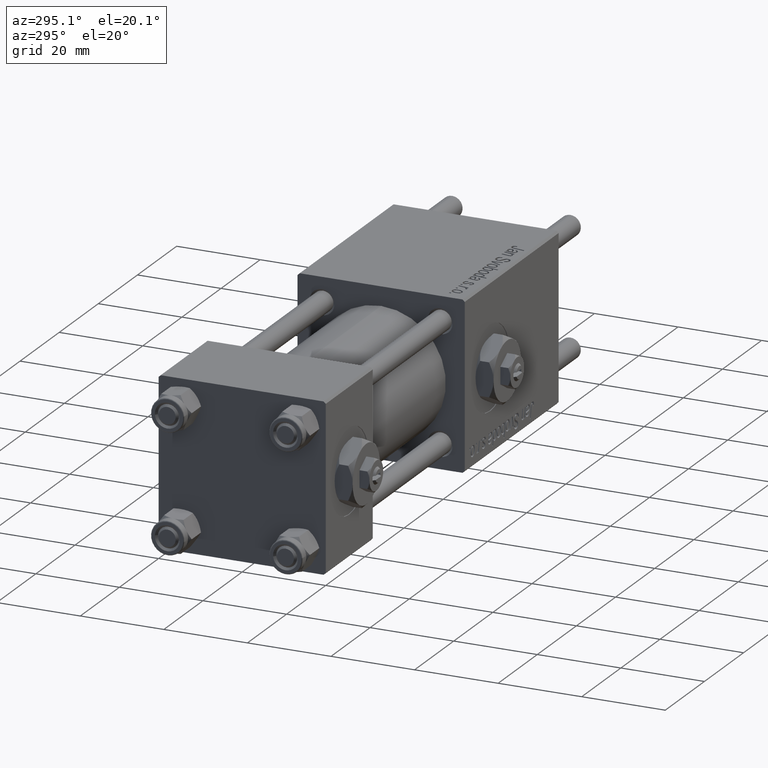
[diagram: clean part render]
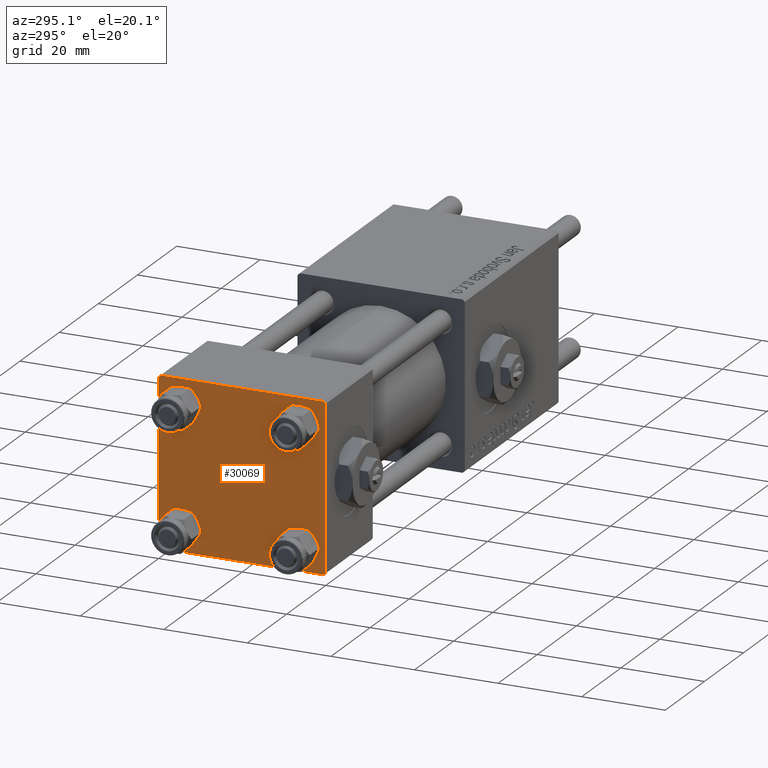
[diagram: same view with one face highlighted and labeled with its STEP entity id]
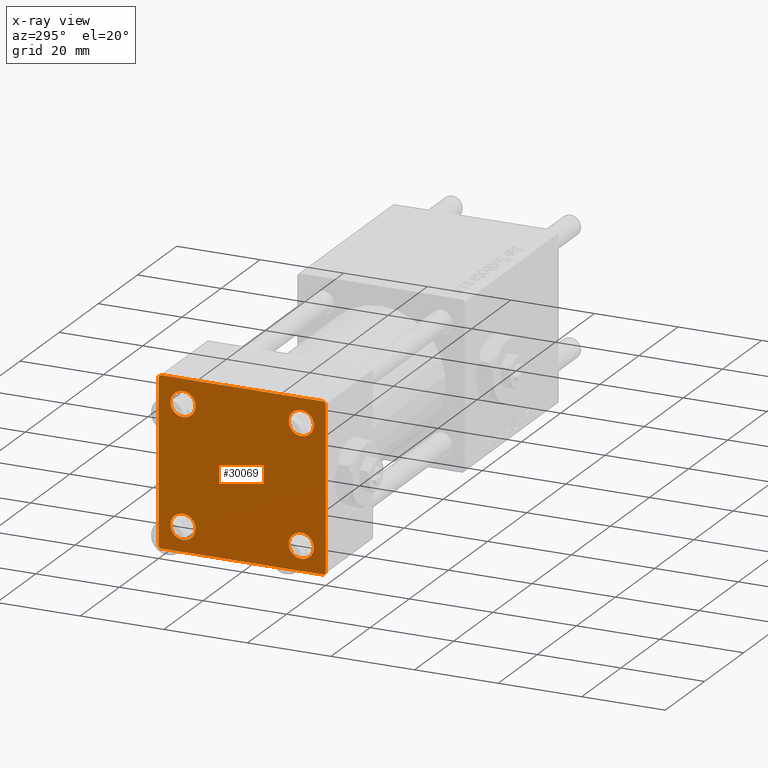
[diagram: x-ray of the same camera — body ghosted, the highlighted face saturated]
A machine part, auxiliary view. The second image highlights one B-rep face of the part: STEP entity #30069.
The next image is the same camera in x-ray: the body ghosted, the highlighted face saturated — about 0% of this face is hidden behind the body in this view.
In plain terms, the highlighted planar face has unit normal (-1, 0, 0).
Its self-contained STEP definition (entity closure, byte-faithful):
#307 = VERTEX_POINT ( 'NONE', #17001 ) ;
#1235 = LINE ( 'NONE', #18492, #41234 ) ;
#1368 = EDGE_CURVE ( 'NONE', #55048, #21621, #33064, .T. ) ;
#1372 = CARTESIAN_POINT ( 'NONE',  ( -0.000000000000000000, 19.75000000000013500, 19.74999999999986144 ) ) ;
#2282 = DIRECTION ( 'NONE',  ( 0.000000000000000000, -0.7071067811865401342, 0.7071067811865549002 ) ) ;
#2341 = DIRECTION ( 'NONE',  ( 0.000000000000000000, 8.673617379884036705E-17, -1.000000000000000000 ) ) ;
#2573 = CARTESIAN_POINT ( 'NONE',  ( 0.000000000000000000, -19.75000000000020961, -19.74999999999979394 ) ) ;
#3221 = ORIENTED_EDGE ( 'NONE', *, *, #1368, .T. ) ;
#3288 = VERTEX_POINT ( 'NONE', #12310 ) ;
#4773 = CARTESIAN_POINT ( 'NONE',  ( 0.000000000000000000, -20.00000000000000355, 19.49999999999998224 ) ) ;
#4894 = DIRECTION ( 'NONE',  ( 0.000000000000000000, 0.000000000000000000, 1.000000000000000000 ) ) ;
#4968 = CARTESIAN_POINT ( 'NONE',  ( 0.000000000000000000, 14.14999999999999858, 11.15000000000001990 ) ) ;
#5051 = DIRECTION ( 'NONE',  ( 0.000000000000000000, 0.000000000000000000, 1.000000000000000000 ) ) ;
#5319 = FACE_BOUND ( 'NONE', #57743, .T. ) ;
#5406 = EDGE_CURVE ( 'NONE', #13984, #37307, #40514, .T. ) ;
#6537 = VERTEX_POINT ( 'NONE', #29812 ) ;
#6815 = EDGE_CURVE ( 'NONE', #55048, #25651, #10976, .T. ) ;
#7297 = VECTOR ( 'NONE', #2341, 1000.000000000000000 ) ;
#7899 = EDGE_LOOP ( 'NONE', ( #49452, #57795, #56521, #33702, #48889, #3221, #45661, #16454 ) ) ;
#7949 = CARTESIAN_POINT ( 'NONE',  ( 0.000000000000000000, -19.49999999999999289, 19.99999999999998934 ) ) ;
#8395 = LINE ( 'NONE', #18815, #44004 ) ;
#8445 = LINE ( 'NONE', #26632, #9678 ) ;
#9432 = EDGE_CURVE ( 'NONE', #55336, #28420, #22693, .T. ) ;
#9652 = DIRECTION ( 'NONE',  ( 1.000000000000000000, 0.000000000000000000, 0.000000000000000000 ) ) ;
#9678 = VECTOR ( 'NONE', #48650, 1000.000000000000000 ) ;
#9910 = CARTESIAN_POINT ( 'NONE',  ( 0.000000000000000000, -14.14999999999999503, 11.15000000000002345 ) ) ;
#10074 = FACE_BOUND ( 'NONE', #48013, .T. ) ;
#10688 = CARTESIAN_POINT ( 'NONE',  ( 0.000000000000000000, -14.14999999999999503, -11.15000000000000036 ) ) ;
#10696 = EDGE_CURVE ( 'NONE', #307, #23887, #43634, .T. ) ;
#10976 = LINE ( 'NONE', #47585, #7297 ) ;
#11027 = CARTESIAN_POINT ( 'NONE',  ( 0.000000000000000000, -14.14999999999999503, 14.15000000000000391 ) ) ;
#11470 = DIRECTION ( 'NONE',  ( 0.000000000000000000, 0.000000000000000000, 1.000000000000000000 ) ) ;
#11562 = EDGE_LOOP ( 'NONE', ( #28789, #22833 ) ) ;
#12310 = CARTESIAN_POINT ( 'NONE',  ( 0.000000000000000000, 19.50000000000000000, 20.00000000000000000 ) ) ;
#12316 = DIRECTION ( 'NONE',  ( 0.000000000000000000, 0.000000000000000000, 1.000000000000000000 ) ) ;
#12605 = DIRECTION ( 'NONE',  ( 1.000000000000000000, 0.000000000000000000, 0.000000000000000000 ) ) ;
#13356 = FACE_OUTER_BOUND ( 'NONE', #7899, .T. ) ;
#13982 = DIRECTION ( 'NONE',  ( 1.000000000000000000, 0.000000000000000000, 0.000000000000000000 ) ) ;
#13984 = VERTEX_POINT ( 'NONE', #29889 ) ;
#15939 = DIRECTION ( 'NONE',  ( 1.000000000000000000, 0.000000000000000000, 0.000000000000000000 ) ) ;
#16066 = AXIS2_PLACEMENT_3D ( 'NONE', #34667, #12605, #12316 ) ;
#16151 = EDGE_CURVE ( 'NONE', #50865, #6537, #16238, .T. ) ;
#16238 = CIRCLE ( 'NONE', #25764, 2.999999999999983569 ) ;
#16444 = CIRCLE ( 'NONE', #44920, 3.000000000000004441 ) ;
#16454 = ORIENTED_EDGE ( 'NONE', *, *, #20929, .T. ) ;
#17001 = CARTESIAN_POINT ( 'NONE',  ( 0.000000000000000000, 14.14999999999999858, -11.15000000000001812 ) ) ;
#18381 = CIRCLE ( 'NONE', #55432, 2.999999999999983569 ) ;
#18492 = CARTESIAN_POINT ( 'NONE',  ( 0.000000000000000000, 20.00000000000000000, 20.00000000000000000 ) ) ;
#18815 = CARTESIAN_POINT ( 'NONE',  ( 0.000000000000000000, 20.00000000000000000, 20.00000000000000000 ) ) ;
#20807 = EDGE_CURVE ( 'NONE', #23887, #307, #23993, .T. ) ;
#20929 = EDGE_CURVE ( 'NONE', #3288, #34663, #55835, .T. ) ;
#21073 = EDGE_CURVE ( 'NONE', #39153, #13984, #8445, .T. ) ;
#21621 = VERTEX_POINT ( 'NONE', #7949 ) ;
#22693 = CIRCLE ( 'NONE', #36970, 3.000000000000004441 ) ;
#22833 = ORIENTED_EDGE ( 'NONE', *, *, #16151, .T. ) ;
#23497 = FACE_BOUND ( 'NONE', #56442, .T. ) ;
#23887 = VERTEX_POINT ( 'NONE', #48321 ) ;
#23993 = CIRCLE ( 'NONE', #38245, 2.999999999999983569 ) ;
#24035 = EDGE_CURVE ( 'NONE', #34663, #39153, #8395, .T. ) ;
#25036 = DIRECTION ( 'NONE',  ( 0.000000000000000000, 0.000000000000000000, 1.000000000000000000 ) ) ;
#25651 = VERTEX_POINT ( 'NONE', #44808 ) ;
#25764 = AXIS2_PLACEMENT_3D ( 'NONE', #49948, #35699, #53824 ) ;
#25814 = CARTESIAN_POINT ( 'NONE',  ( 0.000000000000000000, -19.50000000000000711, -20.00000000000000000 ) ) ;
#26632 = CARTESIAN_POINT ( 'NONE',  ( -0.000000000000000000, 19.74999999999986855, -19.75000000000014211 ) ) ;
#26856 = DIRECTION ( 'NONE',  ( 0.000000000000000000, -1.000000000000000000, 1.734723475976807094E-16 ) ) ;
#26872 = DIRECTION ( 'NONE',  ( 0.000000000000000000, 0.000000000000000000, -1.000000000000000000 ) ) ;
#27434 = DIRECTION ( 'NONE',  ( 0.000000000000000000, -1.000000000000000000, -2.602085213965210149E-16 ) ) ;
#27728 = EDGE_CURVE ( 'NONE', #28420, #55336, #16444, .T. ) ;
#27807 = DIRECTION ( 'NONE',  ( 1.000000000000000000, 0.000000000000000000, 0.000000000000000000 ) ) ;
#28420 = VERTEX_POINT ( 'NONE', #10688 ) ;
#28789 = ORIENTED_EDGE ( 'NONE', *, *, #28938, .T. ) ;
#28938 = EDGE_CURVE ( 'NONE', #6537, #50865, #38323, .T. ) ;
#29215 = EDGE_CURVE ( 'NONE', #32516, #57806, #18381, .T. ) ;
#29352 = CARTESIAN_POINT ( 'NONE',  ( 0.000000000000000000, -14.14999999999999503, 14.15000000000000391 ) ) ;
#29795 = AXIS2_PLACEMENT_3D ( 'NONE', #45826, #13982, #5051 ) ;
#29812 = CARTESIAN_POINT ( 'NONE',  ( 0.000000000000000000, 14.14999999999999858, 17.14999999999998437 ) ) ;
#29864 = EDGE_CURVE ( 'NONE', #3288, #21621, #1235, .T. ) ;
#29889 = CARTESIAN_POINT ( 'NONE',  ( 0.000000000000000000, 19.50000000000000711, -20.00000000000000711 ) ) ;
#30069 = ADVANCED_FACE ( 'NONE', ( #5319, #10074, #23497, #49956, #13356 ), #50257, .T. ) ;
#31888 = ORIENTED_EDGE ( 'NONE', *, *, #27728, .T. ) ;
#32516 = VERTEX_POINT ( 'NONE', #9910 ) ;
#32581 = CARTESIAN_POINT ( 'NONE',  ( 0.000000000000000000, -14.14999999999999503, -14.15000000000000391 ) ) ;
#33064 = LINE ( 'NONE', #46144, #37700 ) ;
#33293 = AXIS2_PLACEMENT_3D ( 'NONE', #29352, #15939, #11470 ) ;
#33653 = DIRECTION ( 'NONE',  ( 1.000000000000000000, 0.000000000000000000, 0.000000000000000000 ) ) ;
#33702 = ORIENTED_EDGE ( 'NONE', *, *, #41673, .T. ) ;
#34663 = VERTEX_POINT ( 'NONE', #35397 ) ;
#34667 = CARTESIAN_POINT ( 'NONE',  ( 0.000000000000000000, 14.14999999999999858, -14.15000000000000036 ) ) ;
#34770 = CARTESIAN_POINT ( 'NONE',  ( 0.000000000000000000, -14.14999999999999503, 17.14999999999998792 ) ) ;
#35397 = CARTESIAN_POINT ( 'NONE',  ( 0.000000000000000000, 20.00000000000000000, 19.49999999999999289 ) ) ;
#35699 = DIRECTION ( 'NONE',  ( 1.000000000000000000, 0.000000000000000000, 0.000000000000000000 ) ) ;
#36304 = ORIENTED_EDGE ( 'NONE', *, *, #29215, .T. ) ;
#36970 = AXIS2_PLACEMENT_3D ( 'NONE', #47634, #27807, #25036 ) ;
#37307 = VERTEX_POINT ( 'NONE', #25814 ) ;
#37543 = DIRECTION ( 'NONE',  ( 0.000000000000000000, 0.000000000000000000, 1.000000000000000000 ) ) ;
#37700 = VECTOR ( 'NONE', #41678, 1000.000000000000114 ) ;
#37790 = ORIENTED_EDGE ( 'NONE', *, *, #20807, .T. ) ;
#37830 = CARTESIAN_POINT ( 'NONE',  ( 0.000000000000000000, 14.14999999999999858, -14.15000000000000036 ) ) ;
#38245 = AXIS2_PLACEMENT_3D ( 'NONE', #37830, #33653, #47035 ) ;
#38323 = CIRCLE ( 'NONE', #29795, 2.999999999999983569 ) ;
#38842 = DIRECTION ( 'NONE',  ( 0.000000000000000000, 0.7071067811865425767, -0.7071067811865525687 ) ) ;
#39153 = VERTEX_POINT ( 'NONE', #56351 ) ;
#39667 = VECTOR ( 'NONE', #2282, 1000.000000000000000 ) ;
#39760 = LINE ( 'NONE', #2573, #39667 ) ;
#39945 = CARTESIAN_POINT ( 'NONE',  ( 0.000000000000000000, 20.00000000000000000, -20.00000000000000711 ) ) ;
#40514 = LINE ( 'NONE', #39945, #43368 ) ;
#40736 = CARTESIAN_POINT ( 'NONE',  ( 0.000000000000000000, 0.000000000000000000, 0.000000000000000000 ) ) ;
#41234 = VECTOR ( 'NONE', #27434, 1000.000000000000000 ) ;
#41326 = DIRECTION ( 'NONE',  ( -0.000000000000000000, 0.000000000000000000, 1.000000000000000000 ) ) ;
#41673 = EDGE_CURVE ( 'NONE', #37307, #25651, #39760, .T. ) ;
#41678 = DIRECTION ( 'NONE',  ( -0.000000000000000000, 0.7071067811865500152, 0.7071067811865451302 ) ) ;
#42546 = ORIENTED_EDGE ( 'NONE', *, *, #57280, .T. ) ;
#43112 = AXIS2_PLACEMENT_3D ( 'NONE', #40736, #55319, #41326 ) ;
#43160 = DIRECTION ( 'NONE',  ( 1.000000000000000000, 0.000000000000000000, 0.000000000000000000 ) ) ;
#43368 = VECTOR ( 'NONE', #26856, 1000.000000000000000 ) ;
#43634 = CIRCLE ( 'NONE', #16066, 2.999999999999983569 ) ;
#44004 = VECTOR ( 'NONE', #26872, 1000.000000000000000 ) ;
#44808 = CARTESIAN_POINT ( 'NONE',  ( 0.000000000000000000, -20.00000000000000000, -19.49999999999999645 ) ) ;
#44920 = AXIS2_PLACEMENT_3D ( 'NONE', #32581, #9652, #4894 ) ;
#45661 = ORIENTED_EDGE ( 'NONE', *, *, #29864, .F. ) ;
#45826 = CARTESIAN_POINT ( 'NONE',  ( 0.000000000000000000, 14.14999999999999858, 14.15000000000000036 ) ) ;
#45831 = VECTOR ( 'NONE', #38842, 999.9999999999998863 ) ;
#46144 = CARTESIAN_POINT ( 'NONE',  ( -0.000000000000000000, -19.74999999999992539, 19.75000000000006395 ) ) ;
#47035 = DIRECTION ( 'NONE',  ( 0.000000000000000000, 0.000000000000000000, 1.000000000000000000 ) ) ;
#47585 = CARTESIAN_POINT ( 'NONE',  ( 0.000000000000000000, -20.00000000000000355, 19.99999999999998934 ) ) ;
#47634 = CARTESIAN_POINT ( 'NONE',  ( 0.000000000000000000, -14.14999999999999503, -14.15000000000000391 ) ) ;
#48013 = EDGE_LOOP ( 'NONE', ( #31888, #54084 ) ) ;
#48321 = CARTESIAN_POINT ( 'NONE',  ( 0.000000000000000000, 14.14999999999999858, -17.14999999999998437 ) ) ;
#48650 = DIRECTION ( 'NONE',  ( -0.000000000000000000, -0.7071067811865524577, -0.7071067811865426878 ) ) ;
#48889 = ORIENTED_EDGE ( 'NONE', *, *, #6815, .F. ) ;
#49452 = ORIENTED_EDGE ( 'NONE', *, *, #24035, .T. ) ;
#49948 = CARTESIAN_POINT ( 'NONE',  ( 0.000000000000000000, 14.14999999999999858, 14.15000000000000036 ) ) ;
#49956 = FACE_BOUND ( 'NONE', #11562, .T. ) ;
#50257 = PLANE ( 'NONE',  #43112 ) ;
#50865 = VERTEX_POINT ( 'NONE', #4968 ) ;
#53188 = CIRCLE ( 'NONE', #33293, 2.999999999999983569 ) ;
#53824 = DIRECTION ( 'NONE',  ( 0.000000000000000000, 0.000000000000000000, 1.000000000000000000 ) ) ;
#54084 = ORIENTED_EDGE ( 'NONE', *, *, #9432, .T. ) ;
#54685 = CARTESIAN_POINT ( 'NONE',  ( 0.000000000000000000, -14.14999999999999503, -17.15000000000000924 ) ) ;
#55048 = VERTEX_POINT ( 'NONE', #4773 ) ;
#55319 = DIRECTION ( 'NONE',  ( -1.000000000000000000, 0.000000000000000000, -0.000000000000000000 ) ) ;
#55336 = VERTEX_POINT ( 'NONE', #54685 ) ;
#55432 = AXIS2_PLACEMENT_3D ( 'NONE', #11027, #43160, #37543 ) ;
#55835 = LINE ( 'NONE', #1372, #45831 ) ;
#56351 = CARTESIAN_POINT ( 'NONE',  ( 0.000000000000000000, 20.00000000000000000, -19.50000000000002132 ) ) ;
#56442 = EDGE_LOOP ( 'NONE', ( #58559, #37790 ) ) ;
#56521 = ORIENTED_EDGE ( 'NONE', *, *, #5406, .T. ) ;
#57280 = EDGE_CURVE ( 'NONE', #57806, #32516, #53188, .T. ) ;
#57743 = EDGE_LOOP ( 'NONE', ( #42546, #36304 ) ) ;
#57795 = ORIENTED_EDGE ( 'NONE', *, *, #21073, .T. ) ;
#57806 = VERTEX_POINT ( 'NONE', #34770 ) ;
#58559 = ORIENTED_EDGE ( 'NONE', *, *, #10696, .T. ) ;